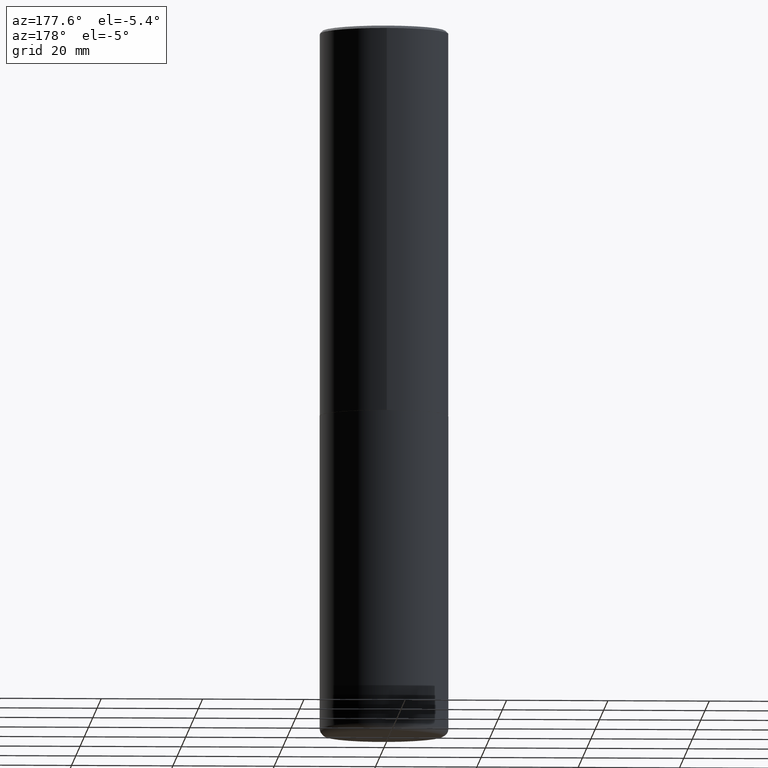
[diagram: clean part render]
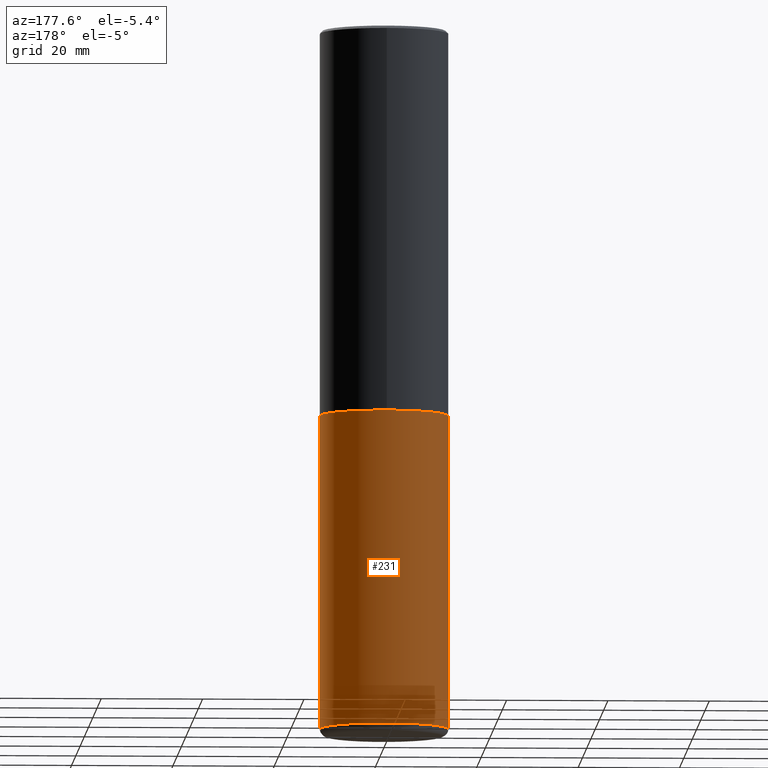
[diagram: same view with one face highlighted and labeled with its STEP entity id]
A machine part, auxiliary view. The second image highlights one B-rep face of the part: STEP entity #231.
In plain terms, the highlighted cylindrical surface (partial cylindrical patch) has radius 12.7 mm, axis along (-0, 0, 1).
Its self-contained STEP definition (entity closure, byte-faithful):
#11 = VECTOR ( 'NONE', #307, 39.37007874015748143 ) ;
#14 = ORIENTED_EDGE ( 'NONE', *, *, #167, .T. ) ;
#72 = DIRECTION ( 'NONE',  ( -2.445468806185136877E-29, 3.491481338843145188E-15, 1.000000000000000000 ) ) ;
#91 = EDGE_CURVE ( 'NONE', #305, #205, #276, .T. ) ;
#110 = AXIS2_PLACEMENT_3D ( 'NONE', #221, #252, #223 ) ;
#113 = FACE_OUTER_BOUND ( 'NONE', #272, .T. ) ;
#115 = CARTESIAN_POINT ( 'NONE',  ( -0.5000000000000000000, -1.118133757111757295E-14, -2.999999999999999556 ) ) ;
#122 = DIRECTION ( 'NONE',  ( -2.445468806185136597E-29, 3.491481338843145583E-15, 1.000000000000000000 ) ) ;
#142 = DIRECTION ( 'NONE',  ( 1.000000000000000000, -6.982962677686269077E-15, 0.000000000000000000 ) ) ;
#166 = LINE ( 'NONE', #364, #197 ) ;
#167 = EDGE_CURVE ( 'NONE', #370, #205, #182, .T. ) ;
#179 = CARTESIAN_POINT ( 'NONE',  ( 1.330335030564714425E-28, -1.899365848330671298E-14, -5.439999999999999503 ) ) ;
#182 = LINE ( 'NONE', #219, #11 ) ;
#183 = ORIENTED_EDGE ( 'NONE', *, *, #394, .T. ) ;
#197 = VECTOR ( 'NONE', #72, 39.37007874015748143 ) ;
#199 = CARTESIAN_POINT ( 'NONE',  ( 0.5000000000000002220, -2.248513982214985265E-14, -5.439999999999999503 ) ) ;
#205 = VERTEX_POINT ( 'NONE', #115 ) ;
#219 = CARTESIAN_POINT ( 'NONE',  ( -0.5000000000000000000, 3.552713678800500929E-15, -2.459467545127452891E-29 ) ) ;
#221 = CARTESIAN_POINT ( 'NONE',  ( 7.336406418555408669E-29, -1.047444401652943478E-14, -2.999999999999999556 ) ) ;
#223 = DIRECTION ( 'NONE',  ( 1.000000000000000000, -6.982962677686266711E-15, 0.000000000000000000 ) ) ;
#231 = ADVANCED_FACE ( 'NONE', ( #113 ), #239, .T. ) ;
#234 = CARTESIAN_POINT ( 'NONE',  ( 0.000000000000000000, 0.000000000000000000, 0.000000000000000000 ) ) ;
#239 = CYLINDRICAL_SURFACE ( 'NONE', #302, 0.5000000000000000000 ) ;
#252 = DIRECTION ( 'NONE',  ( -2.445468806185136597E-29, 3.491481338843145583E-15, 1.000000000000000000 ) ) ;
#257 = CARTESIAN_POINT ( 'NONE',  ( 0.5000000000000000000, -1.396592535537256813E-14, -2.999999999999999556 ) ) ;
#266 = ORIENTED_EDGE ( 'NONE', *, *, #91, .F. ) ;
#272 = EDGE_LOOP ( 'NONE', ( #183, #14, #266, #406 ) ) ;
#276 = CIRCLE ( 'NONE', #110, 0.5000000000000000000 ) ;
#280 = CARTESIAN_POINT ( 'NONE',  ( -0.5000000000000002220, -1.544094480450621205E-14, -5.439999999999999503 ) ) ;
#299 = DIRECTION ( 'NONE',  ( -2.445468806185136597E-29, 3.491481338843145583E-15, 1.000000000000000000 ) ) ;
#302 = AXIS2_PLACEMENT_3D ( 'NONE', #234, #122, #369 ) ;
#305 = VERTEX_POINT ( 'NONE', #257 ) ;
#307 = DIRECTION ( 'NONE',  ( -2.445468806185136877E-29, 3.491481338843145188E-15, 1.000000000000000000 ) ) ;
#311 = EDGE_CURVE ( 'NONE', #350, #305, #166, .T. ) ;
#326 = CIRCLE ( 'NONE', #384, 0.5000000000000001110 ) ;
#350 = VERTEX_POINT ( 'NONE', #199 ) ;
#364 = CARTESIAN_POINT ( 'NONE',  ( 0.5000000000000000000, -3.491481338843133355E-15, 2.438088387897967896E-29 ) ) ;
#369 = DIRECTION ( 'NONE',  ( 1.000000000000000000, -6.982962677686266711E-15, 4.876176775795935793E-29 ) ) ;
#370 = VERTEX_POINT ( 'NONE', #280 ) ;
#384 = AXIS2_PLACEMENT_3D ( 'NONE', #179, #299, #142 ) ;
#394 = EDGE_CURVE ( 'NONE', #350, #370, #326, .T. ) ;
#406 = ORIENTED_EDGE ( 'NONE', *, *, #311, .F. ) ;